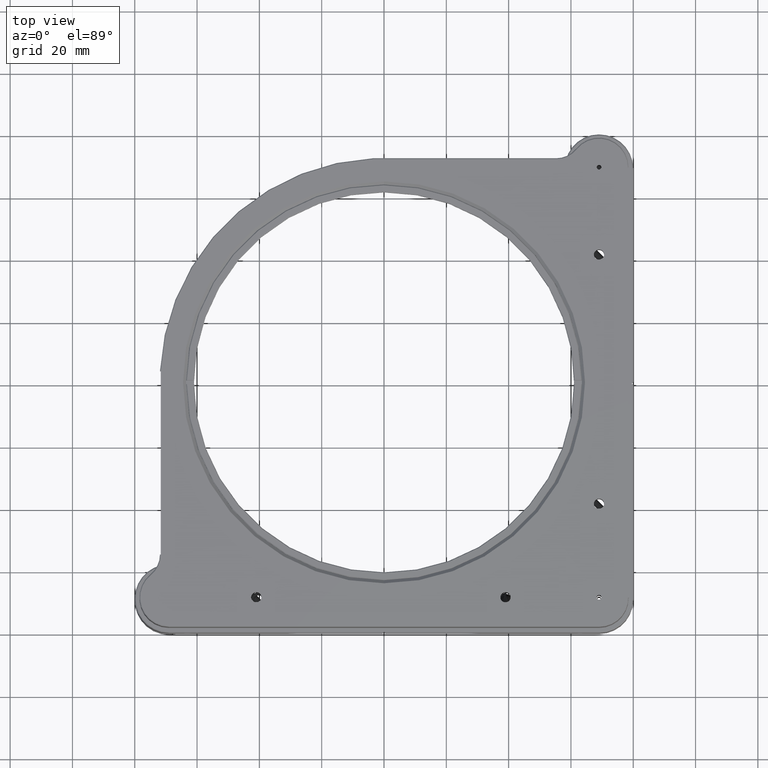
[diagram: clean part render]
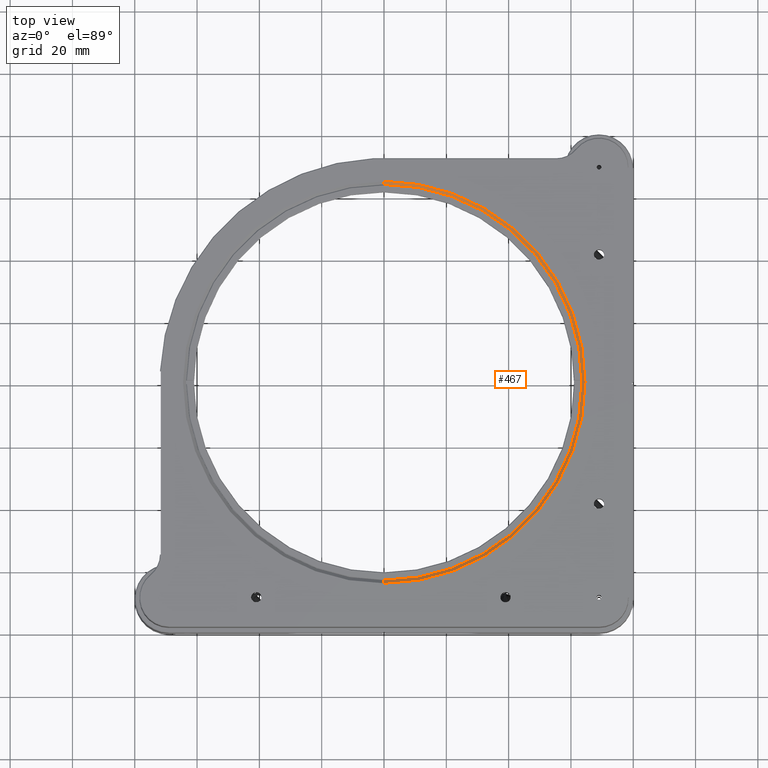
[diagram: same view with one face highlighted and labeled with its STEP entity id]
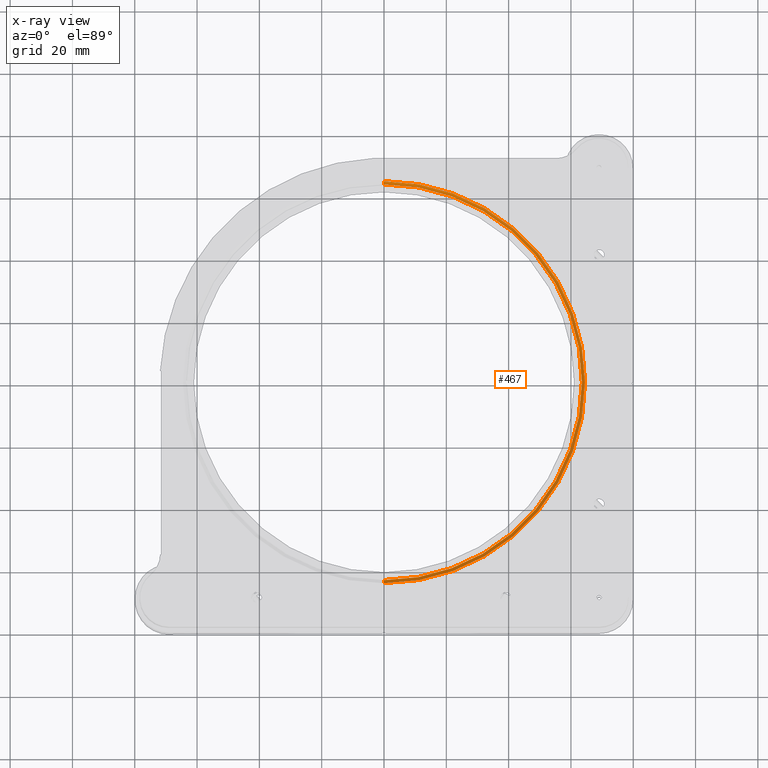
[diagram: x-ray of the same camera — body ghosted, the highlighted face saturated]
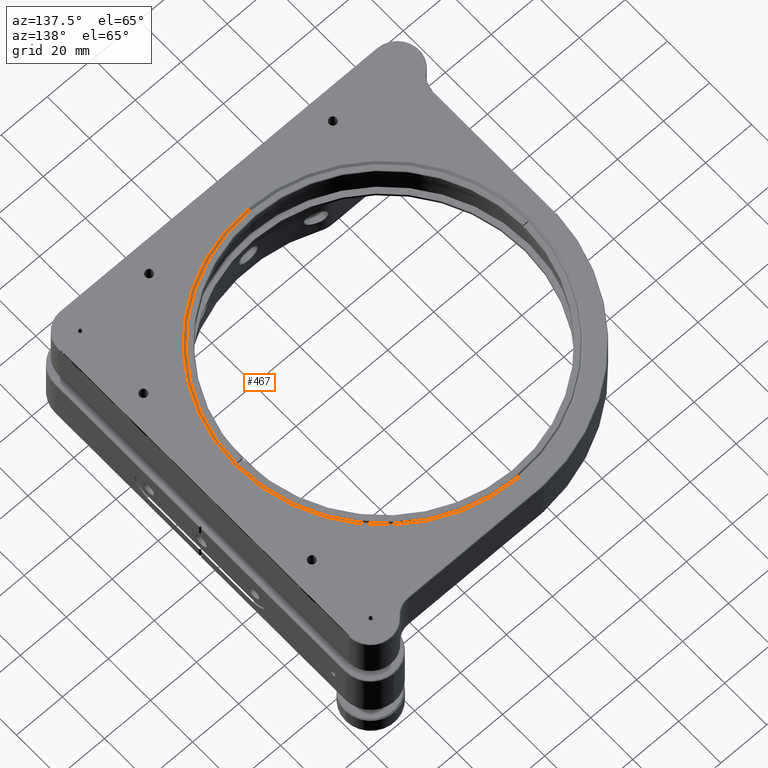
[diagram: same view with one face highlighted and labeled with its STEP entity id]
A machine part, top view. The second image highlights one B-rep face of the part: STEP entity #467.
The next image is the same camera in x-ray: the body ghosted, the highlighted face saturated — about 0% of this face is hidden behind the body in this view.
A second angle (auxiliary view) of the same face is appended — the face is thin or edge-on in the first view.
In plain terms, the highlighted conical surface has half-angle 45 deg.
Its self-contained STEP definition (entity closure, byte-faithful):
#349 = DIRECTION ( 'NONE',  ( 1.460576560598799511E-21, -4.894246277413214072E-36, 1.000000000000000000 ) ) ;
#467 = ADVANCED_FACE ( 'NONE', ( #4751 ), #4293, .F. ) ;
#658 = VERTEX_POINT ( 'NONE', #2662 ) ;
#783 = VERTEX_POINT ( 'NONE', #5926 ) ;
#1224 = EDGE_CURVE ( 'NONE', #658, #783, #12519, .T. ) ;
#2077 = VERTEX_POINT ( 'NONE', #6124 ) ;
#2317 = VECTOR ( 'NONE', #9615, 999.9999999999998863 ) ;
#2580 = DIRECTION ( 'NONE',  ( -4.514005490879974126E-16, 0.7071067811865524577, 0.7071067811865425767 ) ) ;
#2662 = CARTESIAN_POINT ( 'NONE',  ( 5.520878167187794713E-15, -64.50000000000073896, 35.39949493661167423 ) ) ;
#3388 = CARTESIAN_POINT ( 'NONE',  ( 5.520878167187794713E-15, -64.50000000000073896, 35.39949493661167423 ) ) ;
#3791 = DIRECTION ( 'NONE',  ( 1.460576560598799511E-21, -4.894246277413214072E-36, 1.000000000000000000 ) ) ;
#4293 = CONICAL_SURFACE ( 'NONE', #16167, 64.50000000000068212, 0.7853981633974500554 ) ;
#4443 = LINE ( 'NONE', #3388, #2317 ) ;
#4751 = FACE_OUTER_BOUND ( 'NONE', #12762, .T. ) ;
#5474 = ORIENTED_EDGE ( 'NONE', *, *, #6369, .F. ) ;
#5492 = DIRECTION ( 'NONE',  ( 1.460576560598799511E-21, -4.894246277413214072E-36, 1.000000000000000000 ) ) ;
#5623 = EDGE_CURVE ( 'NONE', #15100, #2077, #8068, .T. ) ;
#5926 = CARTESIAN_POINT ( 'NONE',  ( -6.893094282988341123E-14, 64.50000000000062528, 35.39949493661167423 ) ) ;
#6124 = CARTESIAN_POINT ( 'NONE',  ( -6.829256605130048021E-14, 63.50000000000061107, 34.39949493661168134 ) ) ;
#6189 = AXIS2_PLACEMENT_3D ( 'NONE', #9764, #349, #13652 ) ;
#6369 = EDGE_CURVE ( 'NONE', #2077, #783, #13203, .T. ) ;
#7247 = AXIS2_PLACEMENT_3D ( 'NONE', #12041, #5492, #9205 ) ;
#8068 = CIRCLE ( 'NONE', #7247, 63.50000000000066791 ) ;
#8890 = DIRECTION ( 'NONE',  ( -6.383782391594639261E-16, 1.000000000000000000, 0.000000000000000000 ) ) ;
#9060 = ORIENTED_EDGE ( 'NONE', *, *, #1224, .T. ) ;
#9205 = DIRECTION ( 'NONE',  ( -6.383782391594637288E-16, 1.000000000000000000, 0.000000000000000000 ) ) ;
#9420 = EDGE_CURVE ( 'NONE', #15100, #658, #4443, .T. ) ;
#9615 = DIRECTION ( 'NONE',  ( 3.648070090316282753E-16, -0.7071067811865524577, 0.7071067811865425767 ) ) ;
#9764 = CARTESIAN_POINT ( 'NONE',  ( -2.775554640409754885E-14, -5.551115123125781440E-14, 35.39949493661167423 ) ) ;
#10008 = CARTESIAN_POINT ( 'NONE',  ( -2.775554640409754885E-14, -5.551115123125781440E-14, 35.39949493661167423 ) ) ;
#10619 = ORIENTED_EDGE ( 'NONE', *, *, #5623, .F. ) ;
#12041 = CARTESIAN_POINT ( 'NONE',  ( -2.775554786467410809E-14, -5.551115123125781440E-14, 34.39949493661168134 ) ) ;
#12519 = CIRCLE ( 'NONE', #6189, 64.50000000000068212 ) ;
#12525 = ORIENTED_EDGE ( 'NONE', *, *, #9420, .T. ) ;
#12726 = VECTOR ( 'NONE', #2580, 999.9999999999998863 ) ;
#12762 = EDGE_LOOP ( 'NONE', ( #10619, #12525, #9060, #5474 ) ) ;
#13203 = LINE ( 'NONE', #14420, #12726 ) ;
#13652 = DIRECTION ( 'NONE',  ( -6.383782391594639261E-16, 1.000000000000000000, 0.000000000000000000 ) ) ;
#14375 = CARTESIAN_POINT ( 'NONE',  ( 5.004951097609388586E-15, -63.50000000000005684, 34.39949493661168134 ) ) ;
#14420 = CARTESIAN_POINT ( 'NONE',  ( -6.893094282988341123E-14, 64.50000000000062528, 35.39949493661167423 ) ) ;
#15100 = VERTEX_POINT ( 'NONE', #14375 ) ;
#16167 = AXIS2_PLACEMENT_3D ( 'NONE', #10008, #3791, #8890 ) ;